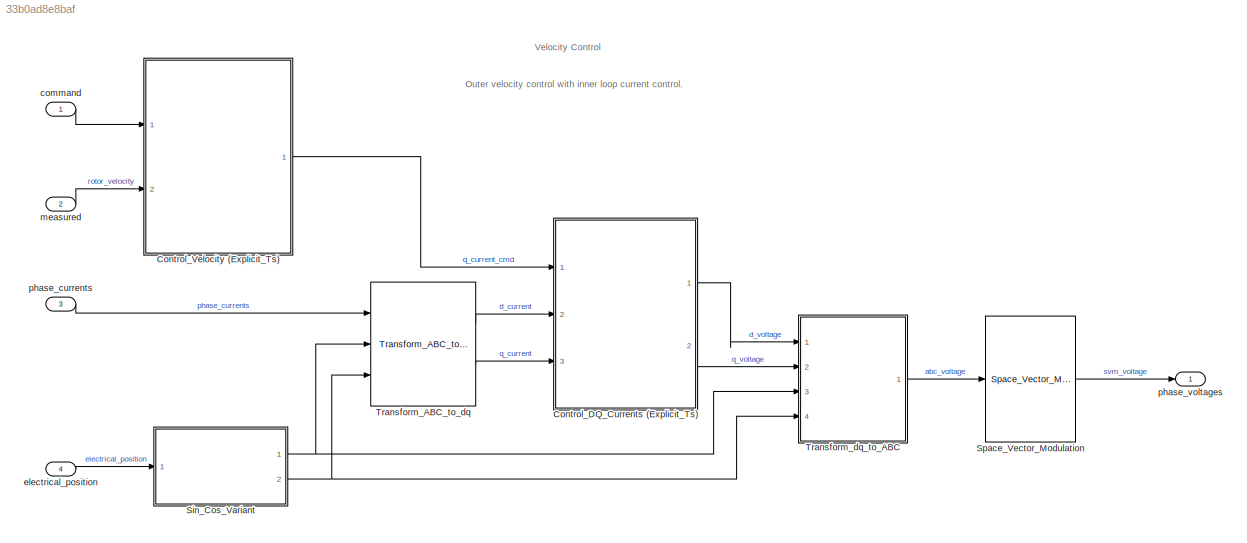
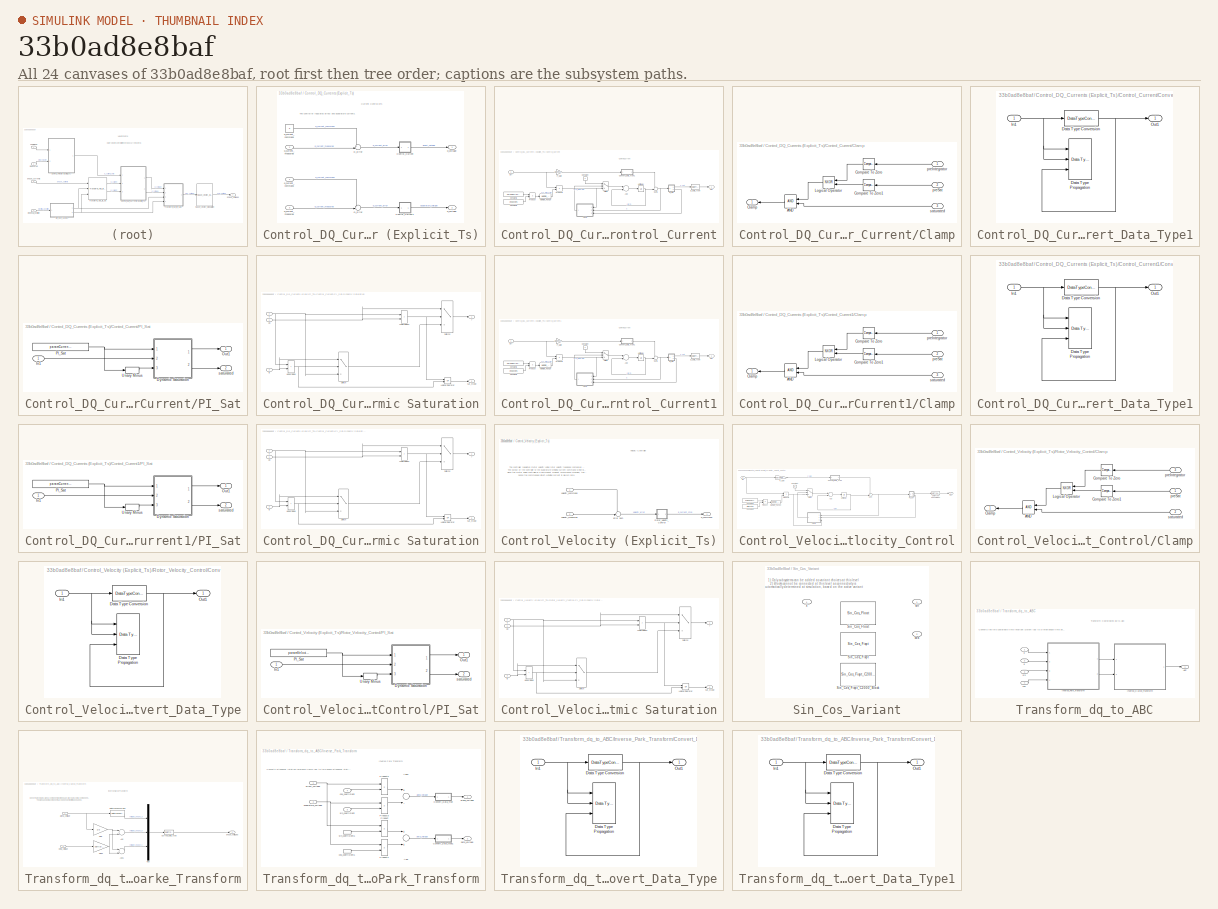
[diagram: thumbnail index - all 24 canvases of the model, root first then tree order]
MODEL slx_33b0ad8e8baf
KIND model
BLOCK [SubSystem] Control_DQ_Currents (Explicit_Ts)
  AncestorBlock = libControlCurrentFixpt/Control_DQ_Currents\n(Explicit_Ts)
  Description = Linear Current Controllers\n\nPID Blocks used for Control Design of Current Loop controllers.
  FunctionWithSeparateData = off
  MaskHideContents = off
  MinAlgLoopOccurrences = off
  Opaque = off
  Ports = [3, 2]
  PropExecContextOutsideSubsystem = off
  RTWFcnName = ControlCurrent
  RTWFcnNameOpts = User specified
  RTWSystemCode = Auto
  RequestExecContextInheritance = off
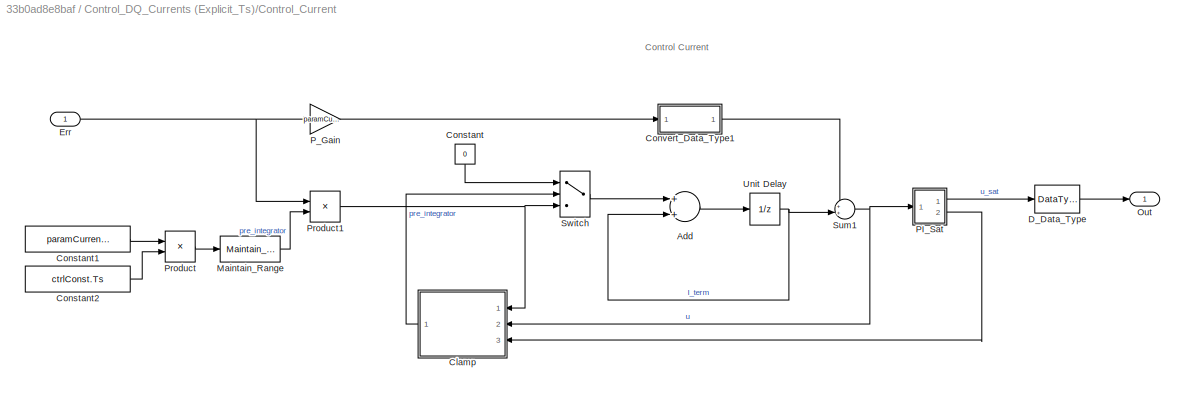
BLOCK [SubSystem] Control_DQ_Currents (Explicit_Ts)/Control_Current
  FunctionWithSeparateData = off
  MaskHideContents = off
  MinAlgLoopOccurrences = off
  Opaque = off
  Ports = [1, 1]
  PropExecContextOutsideSubsystem = off
  RTWSystemCode = Auto
  RequestExecContextInheritance = off
  TreatAsAtomicUnit = on
BLOCK [Sum] Control_DQ_Currents (Explicit_Ts)/Control_Current/Add
  AttributesFormatString = -----------------------------\nMin = %<OutMin>\nMax = %<OutMax>\nSat = %<SaturateOnIntegerOverflow>
  InputSameDT = off
  OutDataTypeStr = DT_PRECISION_HI
  OutMax = ctrlConst.VoltageMax
  OutMin = -ctrlConst.VoltageMax
  Ports = [2, 1]
BLOCK [SubSystem] Control_DQ_Currents (Explicit_Ts)/Control_Current/Clamp
  FunctionWithSeparateData = off
  MaskHideContents = off
  MinAlgLoopOccurrences = off
  Opaque = off
  Ports = [3, 1]
  PropExecContextOutsideSubsystem = off
  RTWSystemCode = Auto
  RequestExecContextInheritance = off
BLOCK [Logic] Control_DQ_Currents (Explicit_Ts)/Control_Current/Clamp/AND
  OutDataTypeStr = boolean
  Ports = [2, 1]
BLOCK [Outport] Control_DQ_Currents (Explicit_Ts)/Control_Current/Clamp/Clamp
  IconDisplay = Port number
BLOCK [Reference] Control_DQ_Currents (Explicit_Ts)/Control_Current/Clamp/Compare To Zero  REF=simulink/Logic and Bit
Operations/Compare
To Zero
  OutDataTypeStr = boolean
  Ports = [1, 1]
  SourceBlock = simulink/Logic and Bit\nOperations/Compare\nTo Zero
  SourceType = Compare To Zero
  ZeroCross = on
  relop = <=
BLOCK [Reference] Control_DQ_Currents (Explicit_Ts)/Control_Current/Clamp/Compare To Zero1  REF=simulink/Logic and Bit
Operations/Compare
To Zero
  OutDataTypeStr = boolean
  Ports = [1, 1]
  SourceBlock = simulink/Logic and Bit\nOperations/Compare\nTo Zero
  SourceType = Compare To Zero
  ZeroCross = on
  relop = <=
BLOCK [Logic] Control_DQ_Currents (Explicit_Ts)/Control_Current/Clamp/Logical Operator
  AllPortsSameDT = off
  Operator = NXOR
  OutDataTypeStr = boolean
  Ports = [2, 1]
BLOCK [Inport] Control_DQ_Currents (Explicit_Ts)/Control_Current/Clamp/preIntegrator
  IconDisplay = Port number
BLOCK [Inport] Control_DQ_Currents (Explicit_Ts)/Control_Current/Clamp/preSat
  IconDisplay = Port number
  Port = 2
BLOCK [Inport] Control_DQ_Currents (Explicit_Ts)/Control_Current/Clamp/saturated
  IconDisplay = Port number
  Port = 3
BLOCK [Constant] Control_DQ_Currents (Explicit_Ts)/Control_Current/Constant
  OutDataTypeStr = Inherit: Inherit via back propagation
  PreserveConstantTs = on
  Value = 0
BLOCK [Constant] Control_DQ_Currents (Explicit_Ts)/Control_Current/Constant1
  SampleTime = -1
  Value = paramCurrentI
BLOCK [Constant] Control_DQ_Currents (Explicit_Ts)/Control_Current/Constant2
  OutDataTypeStr = DT_PRECISION_LO
  SampleTime = -1
  Value = ctrlConst.Ts
BLOCK [SubSystem] Control_DQ_Currents (Explicit_Ts)/Control_Current/Convert_Data_Type1
  FunctionWithSeparateData = off
  MaskHideContents = off
  MinAlgLoopOccurrences = off
  Opaque = off
  Ports = [1, 1]
  PropExecContextOutsideSubsystem = off
  RTWSystemCode = Auto
  RequestExecContextInheritance = off
BLOCK [DataTypeConversion] Control_DQ_Currents (Explicit_Ts)/Control_Current/Convert_Data_Type1/Data Type Conversion
  Priority = 27
  RndMeth = Floor
  SaturateOnIntegerOverflow = off
BLOCK [Reference] Control_DQ_Currents (Explicit_Ts)/Control_Current/Convert_Data_Type1/Data Type Propagation  REF=simulink/Signal
Attributes/Data Type
Propagation
  AttributesFormatString = -------------------------------\nDT = %<PropDataType>
  BiasAdd = 0
  BiasBase = Bias1
  BiasMult = 1
  IfRefDouble = double
  IfRefSingle = single
  IsSigned = IsSigned1
  NumBitsAdd = 0
  NumBitsAllowFinal = 1:128
  NumBitsBase = NumBits1
  NumBitsMult = 1
  Ports = [3]
  Priority = 24
  PropDataType = fixdt(1, 16)
  PropDataTypeMode = Inherit via propagation rule
  PropScaling = 2^-10
  PropScalingMode = Inherit via propagation rule
  SlopeAdd = 0
  SlopeBase = Slope1
  SlopeMult = 2
  SourceBlock = simulink/Signal\nAttributes/Data Type\nPropagation
  SourceType = Data Type Propagation
  ValuesUsedBestPrec = [5 -7]
BLOCK [Inport] Control_DQ_Currents (Explicit_Ts)/Control_Current/Convert_Data_Type1/In1
  IconDisplay = Port number
BLOCK [Outport] Control_DQ_Currents (Explicit_Ts)/Control_Current/Convert_Data_Type1/Out1
  IconDisplay = Port number
BLOCK [DataTypeConversion] Control_DQ_Currents (Explicit_Ts)/Control_Current/D_Data_Type
  AttributesFormatString = --------------------------------------\nMin = %<OutMin>\nMax = %<OutMax>
  OutDataTypeStr = DT_PRECISION_LO
  OutMax = ctrlConst.VoltageMax
  OutMin = -ctrlConst.VoltageMax
  RndMeth = Floor
  SaturateOnIntegerOverflow = off
BLOCK [Inport] Control_DQ_Currents (Explicit_Ts)/Control_Current/Err
  IconDisplay = Port number
BLOCK [Reference] Control_DQ_Currents (Explicit_Ts)/Control_Current/Maintain_Range  REF=libDataType/Maintain_Range
  FunctionWithSeparateData = off
  GeneratePreprocessorConditionals = off
  Ports = [1, 1]
  ShowPortLabels = FromPortIcon
  SourceBlock = libDataType/Maintain_Range
  SystemSampleTime = -1
BLOCK [Outport] Control_DQ_Currents (Explicit_Ts)/Control_Current/Out
  IconDisplay = Port number
BLOCK [SubSystem] Control_DQ_Currents (Explicit_Ts)/Control_Current/PI_Sat
  FunctionWithSeparateData = off
  MaskHideContents = off
  MinAlgLoopOccurrences = off
  Opaque = off
  Ports = [1, 2]
  PropExecContextOutsideSubsystem = off
  RTWSystemCode = Auto
  RequestExecContextInheritance = off
BLOCK [SubSystem] Control_DQ_Currents (Explicit_Ts)/Control_Current/PI_Sat/Dynamic Saturation
  FunctionWithSeparateData = off
  MaskHideContents = off
  MinAlgLoopOccurrences = off
  Opaque = off
  Ports = [3, 2]
  PropExecContextOutsideSubsystem = off
  RTWSystemCode = Auto
  RequestExecContextInheritance = off
BLOCK [Logic] Control_DQ_Currents (Explicit_Ts)/Control_Current/PI_Sat/Dynamic Saturation/Logical Operator
  AllPortsSameDT = off
  Operator = OR
  OutDataTypeStr = boolean
  Ports = [2, 1]
BLOCK [RelationalOperator] Control_DQ_Currents (Explicit_Ts)/Control_Current/PI_Sat/Dynamic Saturation/LowerRelop1
  DisableCoverage = on
  InputSameDT = off
  Operator = >
  OutDataTypeStr = boolean
  Ports = [2, 1]
BLOCK [Switch] Control_DQ_Currents (Explicit_Ts)/Control_Current/PI_Sat/Dynamic Saturation/Switch
  Criteria = u2 ~= 0
  InputSameDT = off
  SaturateOnIntegerOverflow = off
  ZeroCross = off
BLOCK [Switch] Control_DQ_Currents (Explicit_Ts)/Control_Current/PI_Sat/Dynamic Saturation/Switch2
  Criteria = u2 ~= 0
  InputSameDT = off
  SaturateOnIntegerOverflow = off
  ZeroCross = off
BLOCK [RelationalOperator] Control_DQ_Currents (Explicit_Ts)/Control_Current/PI_Sat/Dynamic Saturation/UpperRelop
  DisableCoverage = on
  InputSameDT = off
  Operator = <
  OutDataTypeStr = boolean
  Ports = [2, 1]
BLOCK [Inport] Control_DQ_Currents (Explicit_Ts)/Control_Current/PI_Sat/Dynamic Saturation/lo
  IconDisplay = Port number
  Port = 3
BLOCK [Outport] Control_DQ_Currents (Explicit_Ts)/Control_Current/PI_Sat/Dynamic Saturation/sat_mode
  IconDisplay = Port number
  Port = 2
BLOCK [Inport] Control_DQ_Currents (Explicit_Ts)/Control_Current/PI_Sat/Dynamic Saturation/u
  IconDisplay = Port number
  Port = 2
BLOCK [Inport] Control_DQ_Currents (Explicit_Ts)/Control_Current/PI_Sat/Dynamic Saturation/up
  IconDisplay = Port number
BLOCK [Outport] Control_DQ_Currents (Explicit_Ts)/Control_Current/PI_Sat/Dynamic Saturation/y
  IconDisplay = Port number
BLOCK [Inport] Control_DQ_Currents (Explicit_Ts)/Control_Current/PI_Sat/In1
  IconDisplay = Port number
BLOCK [Outport] Control_DQ_Currents (Explicit_Ts)/Control_Current/PI_Sat/Out1
  IconDisplay = Port number
BLOCK [Constant] Control_DQ_Currents (Explicit_Ts)/Control_Current/PI_Sat/PI_Sat
  PreserveConstantTs = on
  Value = paramCurrentPIVoltageSat
BLOCK [UnaryMinus] Control_DQ_Currents (Explicit_Ts)/Control_Current/PI_Sat/Unary Minus
BLOCK [Outport] Control_DQ_Currents (Explicit_Ts)/Control_Current/PI_Sat/saturated
  IconDisplay = Port number
  Port = 2
BLOCK [Gain] Control_DQ_Currents (Explicit_Ts)/Control_Current/P_Gain
  AttributesFormatString = -----------------------------\n%<Gain>
  Gain = paramCurrentP
  OutDataTypeStr = Inherit: Inherit via internal rule
  ParamDataTypeStr = Inherit: Inherit from 'Gain'
  SaturateOnIntegerOverflow = off
BLOCK [Product] Control_DQ_Currents (Explicit_Ts)/Control_Current/Product
  InputSameDT = off
  OutDataTypeStr = Inherit: Inherit via internal rule
  Ports = [2, 1]
  RndMeth = Floor
  SaturateOnIntegerOverflow = off
BLOCK [Product] Control_DQ_Currents (Explicit_Ts)/Control_Current/Product1
  InputSameDT = off
  OutDataTypeStr = Inherit: Inherit via internal rule
  Ports = [2, 1]
  RndMeth = Floor
  SaturateOnIntegerOverflow = off
BLOCK [Sum] Control_DQ_Currents (Explicit_Ts)/Control_Current/Sum1
  IconShape = round
  InputSameDT = off
  Inputs = ++|
  OutDataTypeStr = Inherit: Inherit via back propagation
  Ports = [2, 1]
  SaturateOnIntegerOverflow = off
BLOCK [Switch] Control_DQ_Currents (Explicit_Ts)/Control_Current/Switch
  Criteria = u2 > Threshold
  SaturateOnIntegerOverflow = off
BLOCK [UnitDelay] Control_DQ_Currents (Explicit_Ts)/Control_Current/Unit Delay
  InputProcessing = Elements as channels (sample based)
  SampleTime = -1
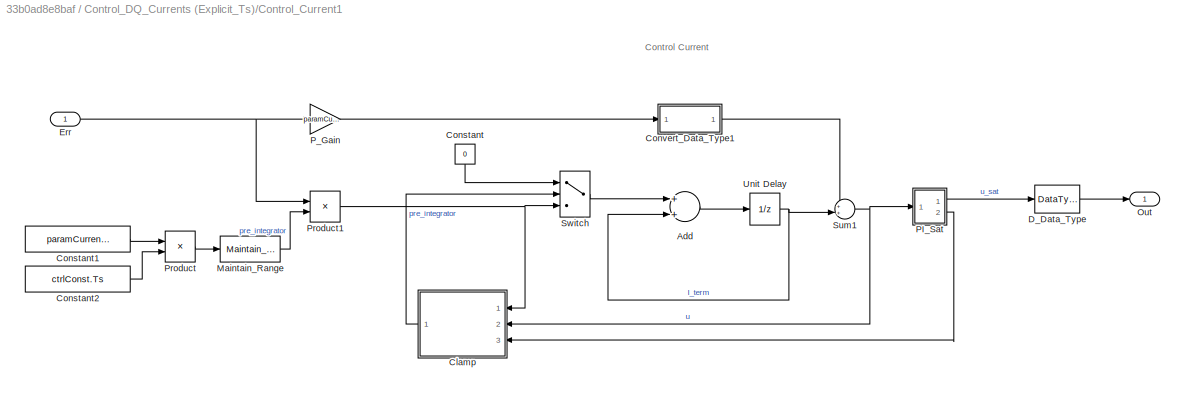
BLOCK [SubSystem] Control_DQ_Currents (Explicit_Ts)/Control_Current1
  FunctionWithSeparateData = off
  MaskHideContents = off
  MinAlgLoopOccurrences = off
  Opaque = off
  Ports = [1, 1]
  PropExecContextOutsideSubsystem = off
  RTWSystemCode = Auto
  RequestExecContextInheritance = off
  TreatAsAtomicUnit = on
BLOCK [Sum] Control_DQ_Currents (Explicit_Ts)/Control_Current1/Add
  AttributesFormatString = -----------------------------\nMin = %<OutMin>\nMax = %<OutMax>\nSat = %<SaturateOnIntegerOverflow>
  InputSameDT = off
  OutDataTypeStr = DT_PRECISION_HI
  OutMax = ctrlConst.VoltageMax
  OutMin = -ctrlConst.VoltageMax
  Ports = [2, 1]
BLOCK [SubSystem] Control_DQ_Currents (Explicit_Ts)/Control_Current1/Clamp
  FunctionWithSeparateData = off
  MaskHideContents = off
  MinAlgLoopOccurrences = off
  Opaque = off
  Ports = [3, 1]
  PropExecContextOutsideSubsystem = off
  RTWSystemCode = Auto
  RequestExecContextInheritance = off
BLOCK [Logic] Control_DQ_Currents (Explicit_Ts)/Control_Current1/Clamp/AND
  OutDataTypeStr = boolean
  Ports = [2, 1]
BLOCK [Outport] Control_DQ_Currents (Explicit_Ts)/Control_Current1/Clamp/Clamp
  IconDisplay = Port number
BLOCK [Reference] Control_DQ_Currents (Explicit_Ts)/Control_Current1/Clamp/Compare To Zero  REF=simulink/Logic and Bit
Operations/Compare
To Zero
  OutDataTypeStr = boolean
  Ports = [1, 1]
  SourceBlock = simulink/Logic and Bit\nOperations/Compare\nTo Zero
  SourceType = Compare To Zero
  ZeroCross = on
  relop = <=
BLOCK [Reference] Control_DQ_Currents (Explicit_Ts)/Control_Current1/Clamp/Compare To Zero1  REF=simulink/Logic and Bit
Operations/Compare
To Zero
  OutDataTypeStr = boolean
  Ports = [1, 1]
  SourceBlock = simulink/Logic and Bit\nOperations/Compare\nTo Zero
  SourceType = Compare To Zero
  ZeroCross = on
  relop = <=
BLOCK [Logic] Control_DQ_Currents (Explicit_Ts)/Control_Current1/Clamp/Logical Operator
  AllPortsSameDT = off
  Operator = NXOR
  OutDataTypeStr = boolean
  Ports = [2, 1]
BLOCK [Inport] Control_DQ_Currents (Explicit_Ts)/Control_Current1/Clamp/preIntegrator
  IconDisplay = Port number
BLOCK [Inport] Control_DQ_Currents (Explicit_Ts)/Control_Current1/Clamp/preSat
  IconDisplay = Port number
  Port = 2
BLOCK [Inport] Control_DQ_Currents (Explicit_Ts)/Control_Current1/Clamp/saturated
  IconDisplay = Port number
  Port = 3
BLOCK [Constant] Control_DQ_Currents (Explicit_Ts)/Control_Current1/Constant
  OutDataTypeStr = Inherit: Inherit via back propagation
  PreserveConstantTs = on
  Value = 0
BLOCK [Constant] Control_DQ_Currents (Explicit_Ts)/Control_Current1/Constant1
  SampleTime = -1
  Value = paramCurrentI
BLOCK [Constant] Control_DQ_Currents (Explicit_Ts)/Control_Current1/Constant2
  OutDataTypeStr = DT_PRECISION_LO
  SampleTime = -1
  Value = ctrlConst.Ts
BLOCK [SubSystem] Control_DQ_Currents (Explicit_Ts)/Control_Current1/Convert_Data_Type1
  FunctionWithSeparateData = off
  MaskHideContents = off
  MinAlgLoopOccurrences = off
  Opaque = off
  Ports = [1, 1]
  PropExecContextOutsideSubsystem = off
  RTWSystemCode = Auto
  RequestExecContextInheritance = off
BLOCK [DataTypeConversion] Control_DQ_Currents (Explicit_Ts)/Control_Current1/Convert_Data_Type1/Data Type Conversion
  Priority = 27
  RndMeth = Floor
  SaturateOnIntegerOverflow = off
BLOCK [Reference] Control_DQ_Currents (Explicit_Ts)/Control_Current1/Convert_Data_Type1/Data Type Propagation  REF=simulink/Signal
Attributes/Data Type
Propagation
  AttributesFormatString = -------------------------------\nDT = %<PropDataType>
  BiasAdd = 0
  BiasBase = Bias1
  BiasMult = 1
  IfRefDouble = double
  IfRefSingle = single
  IsSigned = IsSigned1
  NumBitsAdd = 0
  NumBitsAllowFinal = 1:128
  NumBitsBase = NumBits1
  NumBitsMult = 1
  Ports = [3]
  Priority = 24
  PropDataType = fixdt(1, 16)
  PropDataTypeMode = Inherit via propagation rule
  PropScaling = 2^-10
  PropScalingMode = Inherit via propagation rule
  SlopeAdd = 0
  SlopeBase = Slope1
  SlopeMult = 2
  SourceBlock = simulink/Signal\nAttributes/Data Type\nPropagation
  SourceType = Data Type Propagation
  ValuesUsedBestPrec = [5 -7]
BLOCK [Inport] Control_DQ_Currents (Explicit_Ts)/Control_Current1/Convert_Data_Type1/In1
  IconDisplay = Port number
BLOCK [Outport] Control_DQ_Currents (Explicit_Ts)/Control_Current1/Convert_Data_Type1/Out1
  IconDisplay = Port number
BLOCK [DataTypeConversion] Control_DQ_Currents (Explicit_Ts)/Control_Current1/D_Data_Type
  AttributesFormatString = --------------------------------------\nMin = %<OutMin>\nMax = %<OutMax>
  OutDataTypeStr = DT_PRECISION_LO
  OutMax = ctrlConst.VoltageMax
  OutMin = -ctrlConst.VoltageMax
  RndMeth = Floor
  SaturateOnIntegerOverflow = off
BLOCK [Inport] Control_DQ_Currents (Explicit_Ts)/Control_Current1/Err
  IconDisplay = Port number
BLOCK [Reference] Control_DQ_Currents (Explicit_Ts)/Control_Current1/Maintain_Range  REF=libDataType/Maintain_Range
  FunctionWithSeparateData = off
  GeneratePreprocessorConditionals = off
  Ports = [1, 1]
  ShowPortLabels = FromPortIcon
  SourceBlock = libDataType/Maintain_Range
  SystemSampleTime = -1
BLOCK [Outport] Control_DQ_Currents (Explicit_Ts)/Control_Current1/Out
  IconDisplay = Port number
BLOCK [SubSystem] Control_DQ_Currents (Explicit_Ts)/Control_Current1/PI_Sat
  FunctionWithSeparateData = off
  MaskHideContents = off
  MinAlgLoopOccurrences = off
  Opaque = off
  Ports = [1, 2]
  PropExecContextOutsideSubsystem = off
  RTWSystemCode = Auto
  RequestExecContextInheritance = off
BLOCK [SubSystem] Control_DQ_Currents (Explicit_Ts)/Control_Current1/PI_Sat/Dynamic Saturation
  FunctionWithSeparateData = off
  MaskHideContents = off
  MinAlgLoopOccurrences = off
  Opaque = off
  Ports = [3, 2]
  PropExecContextOutsideSubsystem = off
  RTWSystemCode = Auto
  RequestExecContextInheritance = off
BLOCK [Logic] Control_DQ_Currents (Explicit_Ts)/Control_Current1/PI_Sat/Dynamic Saturation/Logical Operator
  AllPortsSameDT = off
  Operator = OR
  OutDataTypeStr = boolean
  Ports = [2, 1]
BLOCK [RelationalOperator] Control_DQ_Currents (Explicit_Ts)/Control_Current1/PI_Sat/Dynamic Saturation/LowerRelop1
  DisableCoverage = on
  InputSameDT = off
  Operator = >
  OutDataTypeStr = boolean
  Ports = [2, 1]
BLOCK [Switch] Control_DQ_Currents (Explicit_Ts)/Control_Current1/PI_Sat/Dynamic Saturation/Switch
  Criteria = u2 ~= 0
  InputSameDT = off
  SaturateOnIntegerOverflow = off
  ZeroCross = off
BLOCK [Switch] Control_DQ_Currents (Explicit_Ts)/Control_Current1/PI_Sat/Dynamic Saturation/Switch2
  Criteria = u2 ~= 0
  InputSameDT = off
  SaturateOnIntegerOverflow = off
  ZeroCross = off
BLOCK [RelationalOperator] Control_DQ_Currents (Explicit_Ts)/Control_Current1/PI_Sat/Dynamic Saturation/UpperRelop
  DisableCoverage = on
  InputSameDT = off
  Operator = <
  OutDataTypeStr = boolean
  Ports = [2, 1]
BLOCK [Inport] Control_DQ_Currents (Explicit_Ts)/Control_Current1/PI_Sat/Dynamic Saturation/lo
  IconDisplay = Port number
  Port = 3
BLOCK [Outport] Control_DQ_Currents (Explicit_Ts)/Control_Current1/PI_Sat/Dynamic Saturation/sat_mode
  IconDisplay = Port number
  Port = 2
BLOCK [Inport] Control_DQ_Currents (Explicit_Ts)/Control_Current1/PI_Sat/Dynamic Saturation/u
  IconDisplay = Port number
  Port = 2
BLOCK [Inport] Control_DQ_Currents (Explicit_Ts)/Control_Current1/PI_Sat/Dynamic Saturation/up
  IconDisplay = Port number
BLOCK [Outport] Control_DQ_Currents (Explicit_Ts)/Control_Current1/PI_Sat/Dynamic Saturation/y
  IconDisplay = Port number
BLOCK [Inport] Control_DQ_Currents (Explicit_Ts)/Control_Current1/PI_Sat/In1
  IconDisplay = Port number
BLOCK [Outport] Control_DQ_Currents (Explicit_Ts)/Control_Current1/PI_Sat/Out1
  IconDisplay = Port number
BLOCK [Constant] Control_DQ_Currents (Explicit_Ts)/Control_Current1/PI_Sat/PI_Sat
  PreserveConstantTs = on
  Value = paramCurrentPIVoltageSat
BLOCK [UnaryMinus] Control_DQ_Currents (Explicit_Ts)/Control_Current1/PI_Sat/Unary Minus
BLOCK [Outport] Control_DQ_Currents (Explicit_Ts)/Control_Current1/PI_Sat/saturated
  IconDisplay = Port number
  Port = 2
BLOCK [Gain] Control_DQ_Currents (Explicit_Ts)/Control_Current1/P_Gain
  AttributesFormatString = -----------------------------\n%<Gain>
  Gain = paramCurrentP
  OutDataTypeStr = Inherit: Inherit via internal rule
  ParamDataTypeStr = Inherit: Inherit from 'Gain'
  SaturateOnIntegerOverflow = off
BLOCK [Product] Control_DQ_Currents (Explicit_Ts)/Control_Current1/Product
  InputSameDT = off
  OutDataTypeStr = Inherit: Inherit via internal rule
  Ports = [2, 1]
  RndMeth = Floor
  SaturateOnIntegerOverflow = off
BLOCK [Product] Control_DQ_Currents (Explicit_Ts)/Control_Current1/Product1
  InputSameDT = off
  OutDataTypeStr = Inherit: Inherit via internal rule
  Ports = [2, 1]
  RndMeth = Floor
  SaturateOnIntegerOverflow = off
BLOCK [Sum] Control_DQ_Currents (Explicit_Ts)/Control_Current1/Sum1
  IconShape = round
  InputSameDT = off
  Inputs = ++|
  OutDataTypeStr = Inherit: Inherit via back propagation
  Ports = [2, 1]
  SaturateOnIntegerOverflow = off
BLOCK [Switch] Control_DQ_Currents (Explicit_Ts)/Control_Current1/Switch
  Criteria = u2 > Threshold
  SaturateOnIntegerOverflow = off
BLOCK [UnitDelay] Control_DQ_Currents (Explicit_Ts)/Control_Current1/Unit Delay
  InputProcessing = Elements as channels (sample based)
  SampleTime = -1
BLOCK [Sum] Control_DQ_Currents (Explicit_Ts)/D_Error
  AttributesFormatString = --------------------------------------\nMin = %<OutMin>\nMax = %<OutMax>
  IconShape = round
  InputSameDT = off
  Inputs = +-|
  OutDataTypeStr = DT_PRECISION_LO
  OutMax = ctrlConst.CurrentMax * 2
  OutMin = -ctrlConst.CurrentMax * 2
  Ports = [2, 1]
  SaturateOnIntegerOverflow = off
BLOCK [Sum] Control_DQ_Currents (Explicit_Ts)/Q_Error
  AttributesFormatString = --------------------------------------\nMin = %<OutMin>\nMax = %<OutMax>
  IconShape = round
  InputSameDT = off
  Inputs = +-|
  OutDataTypeStr = DT_PRECISION_LO
  OutMax = ctrlConst.CurrentMax * 2
  OutMin = -ctrlConst.CurrentMax * 2
  Ports = [2, 1]
  SaturateOnIntegerOverflow = off
BLOCK [Constant] Control_DQ_Currents (Explicit_Ts)/d_current_command
  OutDataTypeStr = Inherit: Inherit via back propagation
  Value = 0
BLOCK [Inport] Control_DQ_Currents (Explicit_Ts)/d_current_measured
  AttributesFormatString = --------------------------------------\nMin = %<OutMin>\nMax = %<OutMax>
  IconDisplay = Port number
  OutDataTypeStr = DT_PRECISION_LO
  OutMax = ctrlConst.CurrentMax
  OutMin = -ctrlConst.CurrentMax
  Port = 2
BLOCK [Outport] Control_DQ_Currents (Explicit_Ts)/d_voltage
  IconDisplay = Port number
BLOCK [Inport] Control_DQ_Currents (Explicit_Ts)/q_current_command
  AttributesFormatString = --------------------------------------\nMin = %<OutMin>\nMax = %<OutMax>
  IconDisplay = Port number
  OutMax = ctrlConst.CurrentMax
  OutMin = -ctrlConst.CurrentMax
BLOCK [Inport] Control_DQ_Currents (Explicit_Ts)/q_current_measured
  AttributesFormatString = --------------------------------------\nMin = %<OutMin>\nMax = %<OutMax>
  IconDisplay = Port number
  OutDataTypeStr = DT_PRECISION_LO
  OutMax = ctrlConst.CurrentMax
  OutMin = -ctrlConst.CurrentMax
  Port = 3
BLOCK [Outport] Control_DQ_Currents (Explicit_Ts)/q_voltage
  IconDisplay = Port number
  Port = 2
BLOCK [SubSystem] Control_Velocity (Explicit_Ts)
  AncestorBlock = libControlVelocityFixpt/Control_Velocity\n(Explicit_Ts)
  FunctionWithSeparateData = off
  MaskHideContents = off
  MinAlgLoopOccurrences = off
  Opaque = off
  Ports = [2, 1]
  PropExecContextOutsideSubsystem = off
  RTWSystemCode = Auto
  RequestExecContextInheritance = off
BLOCK [Sum] Control_Velocity (Explicit_Ts)/Error Sum
  AttributesFormatString = -----------------------------\nMin = %<OutMin>\nMax = %<OutMax>
  IconShape = round
  InputSameDT = off
  Inputs = +-|
  OutDataTypeStr = DT_PRECISION_LO
  OutMax = 2*ctrlConst.VelocityMax
  OutMin = -2*ctrlConst.VelocityMax
  Ports = [2, 1]
  SaturateOnIntegerOverflow = off
BLOCK [SubSystem] Control_Velocity (Explicit_Ts)/Rotor_Velocity_Control
  FunctionWithSeparateData = off
  MaskHideContents = off
  MinAlgLoopOccurrences = off
  Opaque = off
  Ports = [1, 1]
  PropExecContextOutsideSubsystem = off
  RTWSystemCode = Auto
  RequestExecContextInheritance = off
BLOCK [Sum] Control_Velocity (Explicit_Ts)/Rotor_Velocity_Control/Add
  AttributesFormatString = -----------------------------\nMin = %<OutMin>\nMax = %<OutMax>\nSat = %<SaturateOnIntegerOverflow>
  InputSameDT = off
  OutDataTypeStr = DT_PRECISION_HI
  OutMax = ctrlConst.CurrentMax*2
  OutMin = -ctrlConst.CurrentMax*2
  Ports = [2, 1]
BLOCK [SubSystem] Control_Velocity (Explicit_Ts)/Rotor_Velocity_Control/Clamp
  FunctionWithSeparateData = off
  MaskHideContents = off
  MinAlgLoopOccurrences = off
  Opaque = off
  Ports = [3, 1]
  PropExecContextOutsideSubsystem = off
  RTWSystemCode = Auto
  RequestExecContextInheritance = off
BLOCK [Logic] Control_Velocity (Explicit_Ts)/Rotor_Velocity_Control/Clamp/AND
  OutDataTypeStr = boolean
  Ports = [2, 1]
BLOCK [Outport] Control_Velocity (Explicit_Ts)/Rotor_Velocity_Control/Clamp/Clamp
  IconDisplay = Port number
BLOCK [Reference] Control_Velocity (Explicit_Ts)/Rotor_Velocity_Control/Clamp/Compare To Zero  REF=simulink/Logic and Bit
Operations/Compare
To Zero
  OutDataTypeStr = boolean
  Ports = [1, 1]
  SourceBlock = simulink/Logic and Bit\nOperations/Compare\nTo Zero
  SourceType = Compare To Zero
  ZeroCross = on
  relop = <=
BLOCK [Reference] Control_Velocity (Explicit_Ts)/Rotor_Velocity_Control/Clamp/Compare To Zero1  REF=simulink/Logic and Bit
Operations/Compare
To Zero
  OutDataTypeStr = boolean
  Ports = [1, 1]
  SourceBlock = simulink/Logic and Bit\nOperations/Compare\nTo Zero
  SourceType = Compare To Zero
  ZeroCross = on
  relop = <=
BLOCK [Logic] Control_Velocity (Explicit_Ts)/Rotor_Velocity_Control/Clamp/Logical Operator
  AllPortsSameDT = off
  Operator = NXOR
  OutDataTypeStr = boolean
  Ports = [2, 1]
BLOCK [Inport] Control_Velocity (Explicit_Ts)/Rotor_Velocity_Control/Clamp/preIntegrator
  IconDisplay = Port number
  Port = 3
BLOCK [Inport] Control_Velocity (Explicit_Ts)/Rotor_Velocity_Control/Clamp/preSat
  IconDisplay = Port number
BLOCK [Inport] Control_Velocity (Explicit_Ts)/Rotor_Velocity_Control/Clamp/saturated
  IconDisplay = Port number
  Port = 2
BLOCK [Constant] Control_Velocity (Explicit_Ts)/Rotor_Velocity_Control/Constant
  OutDataTypeStr = Inherit: Inherit via back propagation
  PreserveConstantTs = on
  Value = 0
BLOCK [Constant] Control_Velocity (Explicit_Ts)/Rotor_Velocity_Control/Constant1
  SampleTime = -1
  Value = paramVelocityI
BLOCK [Constant] Control_Velocity (Explicit_Ts)/Rotor_Velocity_Control/Constant2
  OutDataTypeStr = DT_PRECISION_LO
  SampleTime = -1
  Value = ctrlConst.Ts
BLOCK [SubSystem] Control_Velocity (Explicit_Ts)/Rotor_Velocity_Control/Convert_Data_Type
  FunctionWithSeparateData = off
  MaskHideContents = off
  MinAlgLoopOccurrences = off
  Opaque = off
  Ports = [1, 1]
  PropExecContextOutsideSubsystem = off
  RTWSystemCode = Auto
  RequestExecContextInheritance = off
BLOCK [DataTypeConversion] Control_Velocity (Explicit_Ts)/Rotor_Velocity_Control/Convert_Data_Type/Data Type Conversion
  Priority = 27
  RndMeth = Floor
  SaturateOnIntegerOverflow = off
BLOCK [Reference] Control_Velocity (Explicit_Ts)/Rotor_Velocity_Control/Convert_Data_Type/Data Type Propagation  REF=simulink/Signal
Attributes/Data Type
Propagation
  AttributesFormatString = -------------------------------\nDT = %<PropDataType>
  BiasAdd = 0
  BiasBase = Bias1
  BiasMult = 1
  IfRefDouble = double
  IfRefSingle = single
  IsSigned = IsSigned1
  NumBitsAdd = 0
  NumBitsAllowFinal = 1:128
  NumBitsBase = NumBits1
  NumBitsMult = 1
  Ports = [3]
  Priority = 24
  PropDataType = fixdt(1, 16)
  PropDataTypeMode = Inherit via propagation rule
  PropScaling = 2^-10
  PropScalingMode = Inherit via propagation rule
  SlopeAdd = 0
  SlopeBase = Slope1
  SlopeMult = 2
  SourceBlock = simulink/Signal\nAttributes/Data Type\nPropagation
  SourceType = Data Type Propagation
  ValuesUsedBestPrec = [5 -7]
BLOCK [Inport] Control_Velocity (Explicit_Ts)/Rotor_Velocity_Control/Convert_Data_Type/In1
  IconDisplay = Port number
BLOCK [Outport] Control_Velocity (Explicit_Ts)/Rotor_Velocity_Control/Convert_Data_Type/Out1
  IconDisplay = Port number
BLOCK [DataTypeConversion] Control_Velocity (Explicit_Ts)/Rotor_Velocity_Control/Data Type Conversion1
  AttributesFormatString = -----------------------------\nMin = %<OutMin>\nMax = %<OutMax>
  OutDataTypeStr = DT_PRECISION_LO
  OutMax = ctrlConst.CurrentMax
  OutMin = -ctrlConst.CurrentMax
  RndMeth = Floor
  SaturateOnIntegerOverflow = off
BLOCK [Inport] Control_Velocity (Explicit_Ts)/Rotor_Velocity_Control/Err
  IconDisplay = Port number
BLOCK [Reference] Control_Velocity (Explicit_Ts)/Rotor_Velocity_Control/Maintain_Range  REF=libDataType/Maintain_Range
  FunctionWithSeparateData = off
  GeneratePreprocessorConditionals = off
  Ports = [1, 1]
  ShowPortLabels = FromPortIcon
  SourceBlock = libDataType/Maintain_Range
  SystemSampleTime = -1
BLOCK [Outport] Control_Velocity (Explicit_Ts)/Rotor_Velocity_Control/Out
  IconDisplay = Port number
BLOCK [SubSystem] Control_Velocity (Explicit_Ts)/Rotor_Velocity_Control/PI_Sat
  FunctionWithSeparateData = off
  MaskHideContents = off
  MinAlgLoopOccurrences = off
  Opaque = off
  Ports = [1, 2]
  PropExecContextOutsideSubsystem = off
  RTWSystemCode = Auto
  RequestExecContextInheritance = off
BLOCK [SubSystem] Control_Velocity (Explicit_Ts)/Rotor_Velocity_Control/PI_Sat/Dynamic Saturation
  FunctionWithSeparateData = off
  MaskHideContents = off
  MinAlgLoopOccurrences = off
  Opaque = off
  Ports = [3, 2]
  PropExecContextOutsideSubsystem = off
  RTWSystemCode = Auto
  RequestExecContextInheritance = off
BLOCK [Logic] Control_Velocity (Explicit_Ts)/Rotor_Velocity_Control/PI_Sat/Dynamic Saturation/Logical Operator
  AllPortsSameDT = off
  Operator = OR
  OutDataTypeStr = boolean
  Ports = [2, 1]
BLOCK [RelationalOperator] Control_Velocity (Explicit_Ts)/Rotor_Velocity_Control/PI_Sat/Dynamic Saturation/LowerRelop1
  DisableCoverage = on
  InputSameDT = off
  Operator = >
  OutDataTypeStr = boolean
  Ports = [2, 1]
BLOCK [Switch] Control_Velocity (Explicit_Ts)/Rotor_Velocity_Control/PI_Sat/Dynamic Saturation/Switch
  Criteria = u2 ~= 0
  InputSameDT = off
  SaturateOnIntegerOverflow = off
  ZeroCross = off
BLOCK [Switch] Control_Velocity (Explicit_Ts)/Rotor_Velocity_Control/PI_Sat/Dynamic Saturation/Switch2
  Criteria = u2 ~= 0
  InputSameDT = off
  SaturateOnIntegerOverflow = off
  ZeroCross = off
BLOCK [RelationalOperator] Control_Velocity (Explicit_Ts)/Rotor_Velocity_Control/PI_Sat/Dynamic Saturation/UpperRelop
  DisableCoverage = on
  InputSameDT = off
  Operator = <
  OutDataTypeStr = boolean
  Ports = [2, 1]
BLOCK [Inport] Control_Velocity (Explicit_Ts)/Rotor_Velocity_Control/PI_Sat/Dynamic Saturation/lo
  IconDisplay = Port number
  Port = 3
BLOCK [Outport] Control_Velocity (Explicit_Ts)/Rotor_Velocity_Control/PI_Sat/Dynamic Saturation/sat_mode
  IconDisplay = Port number
  Port = 2
BLOCK [Inport] Control_Velocity (Explicit_Ts)/Rotor_Velocity_Control/PI_Sat/Dynamic Saturation/u
  IconDisplay = Port number
  Port = 2
BLOCK [Inport] Control_Velocity (Explicit_Ts)/Rotor_Velocity_Control/PI_Sat/Dynamic Saturation/up
  IconDisplay = Port number
BLOCK [Outport] Control_Velocity (Explicit_Ts)/Rotor_Velocity_Control/PI_Sat/Dynamic Saturation/y
  IconDisplay = Port number
BLOCK [Inport] Control_Velocity (Explicit_Ts)/Rotor_Velocity_Control/PI_Sat/In1
  IconDisplay = Port number
BLOCK [Outport] Control_Velocity (Explicit_Ts)/Rotor_Velocity_Control/PI_Sat/Out1
  IconDisplay = Port number
BLOCK [Constant] Control_Velocity (Explicit_Ts)/Rotor_Velocity_Control/PI_Sat/PI_Sat
  PreserveConstantTs = on
  Value = paramVelocityPICurrentSat
BLOCK [UnaryMinus] Control_Velocity (Explicit_Ts)/Rotor_Velocity_Control/PI_Sat/Unary Minus
BLOCK [Outport] Control_Velocity (Explicit_Ts)/Rotor_Velocity_Control/PI_Sat/saturated
  IconDisplay = Port number
  Port = 2
BLOCK [Gain] Control_Velocity (Explicit_Ts)/Rotor_Velocity_Control/P_Gain
  AttributesFormatString = -----------------------------\n%<Gain>
  Gain = paramVelocityP
  OutDataTypeStr = Inherit: Inherit via internal rule
  ParamDataTypeStr = Inherit: Inherit from 'Gain'
  SaturateOnIntegerOverflow = off
BLOCK [Product] Control_Velocity (Explicit_Ts)/Rotor_Velocity_Control/Product
  InputSameDT = off
  OutDataTypeStr = Inherit: Inherit via internal rule
  Ports = [2, 1]
  RndMeth = Floor
  SaturateOnIntegerOverflow = off
BLOCK [Product] Control_Velocity (Explicit_Ts)/Rotor_Velocity_Control/Product1
  InputSameDT = off
  OutDataTypeStr = Inherit: Inherit via internal rule
  Ports = [2, 1]
  RndMeth = Floor
  SaturateOnIntegerOverflow = off
BLOCK [Sum] Control_Velocity (Explicit_Ts)/Rotor_Velocity_Control/Sum
  IconShape = round
  InputSameDT = off
  Inputs = ++|
  OutDataTypeStr = Inherit: Inherit via internal rule
  Ports = [2, 1]
  SaturateOnIntegerOverflow = off
BLOCK [Switch] Control_Velocity (Explicit_Ts)/Rotor_Velocity_Control/Switch
  Criteria = u2 > Threshold
  SaturateOnIntegerOverflow = off
BLOCK [UnitDelay] Control_Velocity (Explicit_Ts)/Rotor_Velocity_Control/Unit Delay
  InputProcessing = Elements as channels (sample based)
  SampleTime = -1
BLOCK [Outport] Control_Velocity (Explicit_Ts)/q_command
  IconDisplay = Port number
  InitialOutput = 0
BLOCK [Inport] Control_Velocity (Explicit_Ts)/velocity_command
  AttributesFormatString = -----------------------------\nMin = %<OutMin>\nMax = %<OutMax>
  IconDisplay = Port number
  OutMax = ctrlConst.VelocityMax
  OutMin = -ctrlConst.VelocityMax
BLOCK [Inport] Control_Velocity (Explicit_Ts)/velocity_measured
  AttributesFormatString = -----------------------------\nMin = %<OutMin>\nMax = %<OutMax>
  IconDisplay = Port number
  OutMax = ctrlConst.VelocityMax
  OutMin = -ctrlConst.VelocityMax
  Port = 2
BLOCK [SubSystem] Sin_Cos_Variant
  FunctionWithSeparateData = off
  MaskHideContents = off
  MinAlgLoopOccurrences = off
  Opaque = off
  Ports = [1, 2]
  PropExecContextOutsideSubsystem = off
  RTWSystemCode = Auto
  RequestExecContextInheritance = off
  Variant = on
BLOCK [Reference] Sin_Cos_Variant/Sin_Cos_Fixpt  REF=libSinCosFixpt/Sin_Cos_Fixpt
  FunctionWithSeparateData = off
  GeneratePreprocessorConditionals = off
  Ports = [1, 2]
  ShowPortLabels = FromPortIcon
  SourceBlock = libSinCosFixpt/Sin_Cos_Fixpt
  SystemSampleTime = -1
  VariantControl = sinCosVariant==sinCosEnum.FixPt
BLOCK [Reference] Sin_Cos_Variant/Sin_Cos_Fixpt_C2000_Block  REF=libSinCosFixptC2000/Sin_Cos_Fixpt_C2000_Block
  FunctionWithSeparateData = off
  GeneratePreprocessorConditionals = off
  Ports = [1, 2]
  ShowPortLabels = FromPortIcon
  SourceBlock = libSinCosFixptC2000/Sin_Cos_Fixpt_C2000_Block
  SystemSampleTime = -1
  VariantControl = sinCosVariant==sinCosEnum.FixPtC2000
BLOCK [Reference] Sin_Cos_Variant/Sin_Cos_Float  REF=libSinCos/Sin_Cos_Float
  FunctionWithSeparateData = off
  GeneratePreprocessorConditionals = off
  Ports = [1, 2]
  ShowPortLabels = FromPortIcon
  SourceBlock = libSinCos/Sin_Cos_Float
  SystemSampleTime = -1
  VariantControl = sinCosVariant==sinCosEnum.Float
BLOCK [Outport] Sin_Cos_Variant/cos
  IconDisplay = Port number
  Port = 2
BLOCK [Outport] Sin_Cos_Variant/sin
  IconDisplay = Port number
BLOCK [Inport] Sin_Cos_Variant/x
  IconDisplay = Port number
BLOCK [Reference] Space_Vector_Modulation  REF=libAbcDqFixpt/Space_Vector_Modulation
  FunctionWithSeparateData = off
  GeneratePreprocessorConditionals = off
  Ports = [1, 1]
  ShowPortLabels = FromPortIcon
  SourceBlock = libAbcDqFixpt/Space_Vector_Modulation
  SystemSampleTime = -1
  VariantControl = SpaceVectorModulation_JB
BLOCK [Reference] Transform_ABC_to_dq  REF=libAbcDqFixpt/Transform_ABC_to_dq
  FunctionWithSeparateData = off
  GeneratePreprocessorConditionals = off
  Ports = [3, 2]
  ShowPortLabels = FromPortIcon
  SourceBlock = libAbcDqFixpt/Transform_ABC_to_dq
  SystemSampleTime = -1
BLOCK [SubSystem] Transform_dq_to_ABC
  AncestorBlock = libAbcDqFixpt/Transform_dq_to_ABC
  FunctionWithSeparateData = off
  MaskHideContents = off
  MinAlgLoopOccurrences = off
  Opaque = off
  Ports = [4, 1]
  PropExecContextOutsideSubsystem = off
  RTWFcnName = TransformDQToABCWithSVM
  RTWFcnNameOpts = User specified
  RTWSystemCode = Auto
  RequestExecContextInheritance = off
  TreatAsAtomicUnit = on
BLOCK [Outport] Transform_dq_to_ABC/ABC
  IconDisplay = Port number
BLOCK [SubSystem] Transform_dq_to_ABC/Inverse_Clarke_Transform
  FunctionWithSeparateData = off
  MaskHideContents = off
  MinAlgLoopOccurrences = off
  Opaque = off
  Ports = [2, 1]
  PropExecContextOutsideSubsystem = off
  RTWSystemCode = Reusable function
  RequestExecContextInheritance = off
  VariantControl = INVERSE_CLARKE_TRANSFORM
BLOCK [Sum] Transform_dq_to_ABC/Inverse_Clarke_Transform/Add
  InputSameDT = off
  Inputs = -+
  Ports = [2, 1]
  SaturateOnIntegerOverflow = off
BLOCK [Sum] Transform_dq_to_ABC/Inverse_Clarke_Transform/Add1
  InputSameDT = off
  Inputs = --
  Ports = [2, 1]
  SaturateOnIntegerOverflow = off
BLOCK [DataTypeConversion] Transform_dq_to_ABC/Inverse_Clarke_Transform/Current_Data_Type
  AttributesFormatString = --------------------------------------\nSaturate = %<SaturateOnIntegerOverflow>\nMin = %<OutMin>\nMax = %<OutMax>
  OutDataTypeStr = DT_PRECISION_LO
  OutMax = ctrlConst.VoltageMax /2
  OutMin = -ctrlConst.VoltageMax / 2
  RndMeth = Floor
BLOCK [DataTypeConversion] Transform_dq_to_ABC/Inverse_Clarke_Transform/Data Type Conversion
  RndMeth = Floor
  SaturateOnIntegerOverflow = off
BLOCK [Gain] Transform_dq_to_ABC/Inverse_Clarke_Transform/Gain
  Gain = 1/2
  OutDataTypeStr = Inherit: Inherit via internal rule
  ParamDataTypeStr = DT_PRECISION_LO
  ParamMax = 1/2 + sqrt(3)/2
  SaturateOnIntegerOverflow = off
BLOCK [Gain] Transform_dq_to_ABC/Inverse_Clarke_Transform/Gain1
  Gain = sqrt(3)/2
  OutDataTypeStr = Inherit: Inherit via internal rule
  ParamDataTypeStr = DT_PRECISION_LO
  ParamMax = 1/2 + sqrt(3)/2
  SaturateOnIntegerOverflow = off
BLOCK [Mux] Transform_dq_to_ABC/Inverse_Clarke_Transform/Mux
  DisplayOption = bar
  Inputs = 3
  Ports = [3, 1]
BLOCK [Inport] Transform_dq_to_ABC/Inverse_Clarke_Transform/alpha_voltage
  IconDisplay = Port number
BLOCK [Inport] Transform_dq_to_ABC/Inverse_Clarke_Transform/beta_voltage
  IconDisplay = Port number
  Port = 2
BLOCK [Outport] Transform_dq_to_ABC/Inverse_Clarke_Transform/phase_voltages
  IconDisplay = Port number
BLOCK [SubSystem] Transform_dq_to_ABC/Inverse_Park_Transform
  FunctionWithSeparateData = off
  MaskHideContents = off
  MinAlgLoopOccurrences = off
  Opaque = off
  Ports = [4, 2]
  PropExecContextOutsideSubsystem = off
  RTWSystemCode = Auto
  RequestExecContextInheritance = off
BLOCK [Sum] Transform_dq_to_ABC/Inverse_Park_Transform/Add
  Ports = [2, 1]
  SaturateOnIntegerOverflow = off
BLOCK [Sum] Transform_dq_to_ABC/Inverse_Park_Transform/Add1
  Inputs = +-
  Ports = [2, 1]
  SaturateOnIntegerOverflow = off
BLOCK [SubSystem] Transform_dq_to_ABC/Inverse_Park_Transform/Convert_Data_Type
  FunctionWithSeparateData = off
  MaskHideContents = off
  MinAlgLoopOccurrences = off
  Opaque = off
  Ports = [1, 1]
  PropExecContextOutsideSubsystem = off
  RTWSystemCode = Auto
  RequestExecContextInheritance = off
BLOCK [DataTypeConversion] Transform_dq_to_ABC/Inverse_Park_Transform/Convert_Data_Type/Data Type Conversion
  RndMeth = Floor
  SaturateOnIntegerOverflow = off
BLOCK [Reference] Transform_dq_to_ABC/Inverse_Park_Transform/Convert_Data_Type/Data Type Propagation  REF=simulink/Signal
Attributes/Data Type
Propagation
  AttributesFormatString = -------------------------------\nDT = %<PropDataType>
  BiasAdd = 0
  BiasBase = Bias1
  BiasMult = 1
  IfRefDouble = double
  IfRefSingle = single
  IsSigned = IsSigned1
  NumBitsAdd = 0
  NumBitsAllowFinal = 1:128
  NumBitsBase = NumBits1
  NumBitsMult = 0
  Ports = [3]
  PropDataType = DT_PRECISION_LO
  PropDataTypeMode = Specify via dialog
  PropScaling = 2^-10
  PropScalingMode = Inherit via propagation rule
  SlopeAdd = 0
  SlopeBase = PosRange1
  SlopeMult = 1
  SourceBlock = simulink/Signal\nAttributes/Data Type\nPropagation
  SourceType = Data Type Propagation
  ValuesUsedBestPrec = [5 -7]
BLOCK [Inport] Transform_dq_to_ABC/Inverse_Park_Transform/Convert_Data_Type/In1
  IconDisplay = Port number
BLOCK [Outport] Transform_dq_to_ABC/Inverse_Park_Transform/Convert_Data_Type/Out1
  IconDisplay = Port number
BLOCK [SubSystem] Transform_dq_to_ABC/Inverse_Park_Transform/Convert_Data_Type1
  FunctionWithSeparateData = off
  MaskHideContents = off
  MinAlgLoopOccurrences = off
  Opaque = off
  Ports = [1, 1]
  PropExecContextOutsideSubsystem = off
  RTWSystemCode = Auto
  RequestExecContextInheritance = off
BLOCK [DataTypeConversion] Transform_dq_to_ABC/Inverse_Park_Transform/Convert_Data_Type1/Data Type Conversion
  RndMeth = Floor
  SaturateOnIntegerOverflow = off
BLOCK [Reference] Transform_dq_to_ABC/Inverse_Park_Transform/Convert_Data_Type1/Data Type Propagation  REF=simulink/Signal
Attributes/Data Type
Propagation
  AttributesFormatString = -------------------------------\nDT = %<PropDataType>
  BiasAdd = 0
  BiasBase = Bias1
  BiasMult = 1
  IfRefDouble = double
  IfRefSingle = single
  IsSigned = IsSigned1
  NumBitsAdd = 0
  NumBitsAllowFinal = 1:128
  NumBitsBase = NumBits1
  NumBitsMult = 0
  Ports = [3]
  PropDataType = DT_PRECISION_LO
  PropDataTypeMode = Specify via dialog
  PropScaling = 2^-10
  PropScalingMode = Inherit via propagation rule
  SlopeAdd = 0
  SlopeBase = PosRange1
  SlopeMult = 1
  SourceBlock = simulink/Signal\nAttributes/Data Type\nPropagation
  SourceType = Data Type Propagation
  ValuesUsedBestPrec = [5 -7]
BLOCK [Inport] Transform_dq_to_ABC/Inverse_Park_Transform/Convert_Data_Type1/In1
  IconDisplay = Port number
BLOCK [Outport] Transform_dq_to_ABC/Inverse_Park_Transform/Convert_Data_Type1/Out1
  IconDisplay = Port number
BLOCK [Product] Transform_dq_to_ABC/Inverse_Park_Transform/Product
  InputSameDT = off
  OutDataTypeStr = Inherit: Inherit via internal rule
  Ports = [2, 1]
  RndMeth = Simplest
  SaturateOnIntegerOverflow = off
BLOCK [Product] Transform_dq_to_ABC/Inverse_Park_Transform/Product1
  InputSameDT = off
  OutDataTypeStr = Inherit: Inherit via internal rule
  Ports = [2, 1]
  RndMeth = Simplest
  SaturateOnIntegerOverflow = off
BLOCK [Product] Transform_dq_to_ABC/Inverse_Park_Transform/Product2
  InputSameDT = off
  OutDataTypeStr = Inherit: Inherit via internal rule
  Ports = [2, 1]
  RndMeth = Simplest
  SaturateOnIntegerOverflow = off
BLOCK [Product] Transform_dq_to_ABC/Inverse_Park_Transform/Product3
  InputSameDT = off
  OutDataTypeStr = Inherit: Inherit via internal rule
  Ports = [2, 1]
  RndMeth = Simplest
  SaturateOnIntegerOverflow = off
BLOCK [Outport] Transform_dq_to_ABC/Inverse_Park_Transform/alpha_voltage
  IconDisplay = Port number
BLOCK [Outport] Transform_dq_to_ABC/Inverse_Park_Transform/beta_voltage
  IconDisplay = Port number
  Port = 2
BLOCK [Inport] Transform_dq_to_ABC/Inverse_Park_Transform/cos_coefficient
  IconDisplay = Port number
  Port = 4
BLOCK [InportShadow] Transform_dq_to_ABC/Inverse_Park_Transform/cos_coefficient1
  IconDisplay = Port number
  LatchByDelayingOutsideSignal = off
  LatchInputForFeedbackSignals = off
  Port = 4
BLOCK [Inport] Transform_dq_to_ABC/Inverse_Park_Transform/direct_voltage
  IconDisplay = Port number
BLOCK [Inport] Transform_dq_to_ABC/Inverse_Park_Transform/quadrature_voltage
  IconDisplay = Port number
  Port = 2
BLOCK [Inport] Transform_dq_to_ABC/Inverse_Park_Transform/sin_coefficient
  IconDisplay = Port number
  Port = 3
BLOCK [InportShadow] Transform_dq_to_ABC/Inverse_Park_Transform/sin_coefficient1
  IconDisplay = Port number
  LatchByDelayingOutsideSignal = off
  LatchInputForFeedbackSignals = off
  Port = 3
BLOCK [Inport] Transform_dq_to_ABC/cos
  IconDisplay = Port number
  OutMax = 1
  OutMin = -1
  Port = 4
BLOCK [Inport] Transform_dq_to_ABC/d
  IconDisplay = Port number
BLOCK [Inport] Transform_dq_to_ABC/q
  IconDisplay = Port number
  Port = 2
BLOCK [Inport] Transform_dq_to_ABC/sin
  IconDisplay = Port number
  OutMax = 1
  OutMin = -1
  Port = 3
BLOCK [Inport] command
  AttributesFormatString = -------------------\nMin = %<OutMin>\nMax = %<OutMax>
  IconDisplay = Port number
  Interpolate = off
  OutDataTypeStr = DT_PRECISION_LO
  OutMax = ctrlConst.VelocityMax
  OutMin = -ctrlConst.VelocityMax
  PortDimensions = 1
  SampleTime = ctrlConst.TsControlLawPort
  SamplingMode = Sample based
  SignalType = real
BLOCK [Inport] electrical_position
  AttributesFormatString = -------------------\nMin = %<OutMin>\nMax = %<OutMax>
  IconDisplay = Port number
  Interpolate = off
  OutDataTypeStr = DT_PRECISION_LO
  OutMax = 2*pi
  OutMin = 0
  Port = 4
  PortDimensions = 1
  SamplingMode = Sample based
  SignalType = real
BLOCK [Inport] measured
  AttributesFormatString = -------------------\nMin = %<OutMin>\nMax = %<OutMax>
  IconDisplay = Port number
  OutDataTypeStr = DT_PRECISION_LO
  OutMax = ctrlConst.VelocityMax
  OutMin = -ctrlConst.VelocityMax
  Port = 2
  PortDimensions = 1
  SamplingMode = Sample based
  SignalType = real
BLOCK [Inport] phase_currents
  AttributesFormatString = -------------------\nMin = %<OutMin>\nMax = %<OutMax>
  IconDisplay = Port number
  Interpolate = off
  OutDataTypeStr = DT_PRECISION_LO
  OutMax = ctrlConst.CurrentMax
  OutMin = -ctrlConst.CurrentMax
  Port = 3
  PortDimensions = 2
  SamplingMode = Sample based
  SignalType = real
BLOCK [Outport] phase_voltages
  IconDisplay = Port number
  PortDimensions = 3
  SamplingMode = Sample based
  SignalType = real
ANNOTATION (root): Outer velocity control with inner loop current control.
ANNOTATION (root): Velocity Control
ANNOTATION Control_DQ_Currents (Explicit_Ts): Current Controllers
ANNOTATION Control_DQ_Currents (Explicit_Ts): The controller regulates direct and quadrature currents.
ANNOTATION Control_DQ_Currents (Explicit_Ts)/Control_Current: Control Current
ANNOTATION Control_DQ_Currents (Explicit_Ts)/Control_Current1: Control Current
ANNOTATION Control_Velocity (Explicit_Ts): The controller regulates motor velocity using rotor velocity feedback compared to a commanded velocity. The output of the controller is the quadrature-winding current command which is directly proportional to the electromagnetic torque of the motor. Since the motor being controlled is a Permanent Magnet Synchronous Machine, the rotor flux linkage is fixed (determined by the magnets), hence the com...<+45ch>
ANNOTATION Control_Velocity (Explicit_Ts): Velocity Controller
ANNOTATION Sin_Cos_Variant: 1) Only subsystems can be added as variant choices at this level 2) Blocks cannot be connected at this level as connectivity is automatically determined at simulation, based on the active variant
ANNOTATION Transform_dq_to_ABC: Converts the two coordinate time invariant system (dq) to a three-phase time and speed dependent system (ABC).
ANNOTATION Transform_dq_to_ABC: Transform Coordinates dq to ABC
ANNOTATION Transform_dq_to_ABC/Inverse_Clarke_Transform: Converts direct axis (alpha) component and the quadrature axis (beta) component to balanced three-phase quantities The alpha and beta components are dependent on time and speed.
ANNOTATION Transform_dq_to_ABC/Inverse_Clarke_Transform: Inverse Clarke Transform
ANNOTATION Transform_dq_to_ABC/Inverse_Park_Transform: Converts orthogonal rotating reference frame (dq) to two-phase orthogonal stationary reference frame (alpha, beta)
ANNOTATION Transform_dq_to_ABC/Inverse_Park_Transform: Inverse Park Transform
LINE Control_DQ_Currents (Explicit_Ts):1 -> Transform_dq_to_ABC:1
LINE Control_DQ_Currents (Explicit_Ts):2 -> Transform_dq_to_ABC:2
LINE Control_Velocity (Explicit_Ts):1 -> Control_DQ_Currents (Explicit_Ts):1
NET Sin_Cos_Variant:1 -> Transform_ABC_to_dq:2, Transform_dq_to_ABC:3
NET Sin_Cos_Variant:2 -> Transform_ABC_to_dq:3, Transform_dq_to_ABC:4
LINE Space_Vector_Modulation:1 -> phase_voltages:1
LINE Transform_ABC_to_dq:1 -> Control_DQ_Currents (Explicit_Ts):2
LINE Transform_ABC_to_dq:2 -> Control_DQ_Currents (Explicit_Ts):3
LINE Transform_dq_to_ABC:1 -> Space_Vector_Modulation:1
LINE command:1 -> Control_Velocity (Explicit_Ts):1
LINE electrical_position:1 -> Sin_Cos_Variant:1
LINE measured:1 -> Control_Velocity (Explicit_Ts):2
LINE phase_currents:1 -> Transform_ABC_to_dq:1
note: NET lines group one-source signal fan-out (src -> all destinations, sorted); 1:1 wires keep LINE
